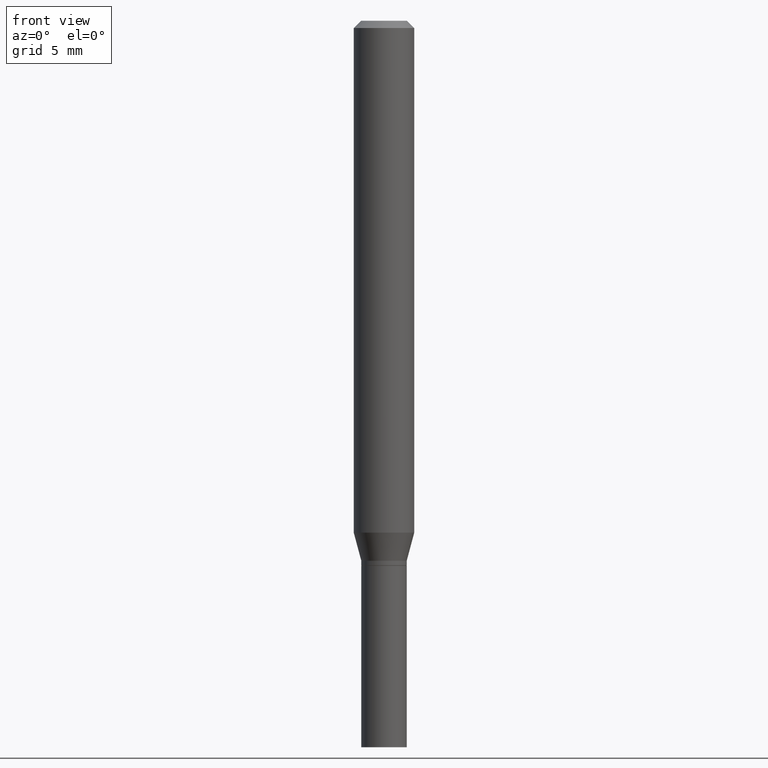
[diagram: clean part render]
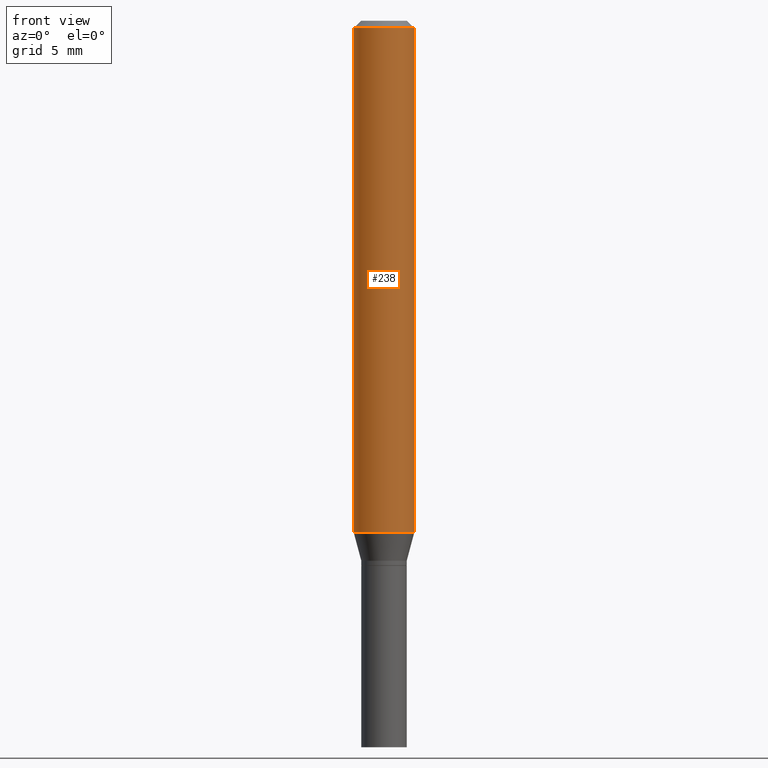
[diagram: same view with one face highlighted and labeled with its STEP entity id]
A machine part, front view. The second image highlights one B-rep face of the part: STEP entity #238.
In plain terms, the highlighted cylindrical surface (edge-blend (fillet) strip) has radius 1.5875 mm, axis along (-0, 0, 1).
Its self-contained STEP definition (entity closure, byte-faithful):
#22 = FACE_OUTER_BOUND ( 'NONE', #161, .T. ) ;
#35 = VERTEX_POINT ( 'NONE', #253 ) ;
#45 = CYLINDRICAL_SURFACE ( 'NONE', #272, 0.06250000000000000000 ) ;
#47 = ORIENTED_EDGE ( 'NONE', *, *, #222, .F. ) ;
#55 = ORIENTED_EDGE ( 'NONE', *, *, #112, .T. ) ;
#56 = VERTEX_POINT ( 'NONE', #454 ) ;
#60 = CARTESIAN_POINT ( 'NONE',  ( 0.06250000000000000000, -4.364351673553916694E-16, 3.047610484872459871E-30 ) ) ;
#84 = DIRECTION ( 'NONE',  ( -2.445468806185136877E-29, 3.491481338843145188E-15, 1.000000000000000000 ) ) ;
#88 = CIRCLE ( 'NONE', #437, 0.06249999999999999306 ) ;
#106 = DIRECTION ( 'NONE',  ( 1.000000000000000000, -6.982962677686266711E-15, 0.000000000000000000 ) ) ;
#112 = EDGE_CURVE ( 'NONE', #35, #425, #88, .T. ) ;
#137 = CARTESIAN_POINT ( 'NONE',  ( 3.668203209277705088E-31, -5.237222008264718399E-17, -0.01499999999999999944 ) ) ;
#145 = ORIENTED_EDGE ( 'NONE', *, *, #307, .T. ) ;
#147 = CARTESIAN_POINT ( 'NONE',  ( 0.000000000000000000, 0.000000000000000000, 0.000000000000000000 ) ) ;
#154 = DIRECTION ( 'NONE',  ( -2.445468806185136597E-29, 3.491481338843145583E-15, 1.000000000000000000 ) ) ;
#160 = CARTESIAN_POINT ( 'NONE',  ( 0.06250000000000000000, -4.888073874380388472E-16, -0.01499999999999999944 ) ) ;
#161 = EDGE_LOOP ( 'NONE', ( #318, #55, #145, #47 ) ) ;
#194 = CIRCLE ( 'NONE', #390, 0.06250000000000000000 ) ;
#211 = LINE ( 'NONE', #279, #362 ) ;
#220 = CARTESIAN_POINT ( 'NONE',  ( 2.584322543101508946E-29, -3.689727675106347649E-15, -1.056780007401926680 ) ) ;
#222 = EDGE_CURVE ( 'NONE', #56, #423, #194, .T. ) ;
#238 = ADVANCED_FACE ( 'NONE', ( #22 ), #45, .T. ) ;
#239 = DIRECTION ( 'NONE',  ( -2.445468806185136877E-29, 3.491481338843145188E-15, 1.000000000000000000 ) ) ;
#250 = DIRECTION ( 'NONE',  ( 1.000000000000000000, -6.982962677686266711E-15, 4.876176775795935793E-29 ) ) ;
#253 = CARTESIAN_POINT ( 'NONE',  ( -0.06249999999999999306, -3.245638465256285822E-15, -1.056780007401926680 ) ) ;
#260 = EDGE_CURVE ( 'NONE', #35, #56, #211, .T. ) ;
#272 = AXIS2_PLACEMENT_3D ( 'NONE', #147, #431, #250 ) ;
#279 = CARTESIAN_POINT ( 'NONE',  ( -0.06250000000000000000, 4.440892098500626162E-16, -3.074334431409316114E-30 ) ) ;
#307 = EDGE_CURVE ( 'NONE', #425, #423, #314, .T. ) ;
#314 = LINE ( 'NONE', #60, #368 ) ;
#318 = ORIENTED_EDGE ( 'NONE', *, *, #260, .F. ) ;
#353 = DIRECTION ( 'NONE',  ( -2.445468806185136597E-29, 3.491481338843145583E-15, 1.000000000000000000 ) ) ;
#362 = VECTOR ( 'NONE', #84, 39.37007874015748143 ) ;
#368 = VECTOR ( 'NONE', #239, 39.37007874015748143 ) ;
#369 = DIRECTION ( 'NONE',  ( 1.000000000000000000, -6.982962677686263555E-15, 0.000000000000000000 ) ) ;
#390 = AXIS2_PLACEMENT_3D ( 'NONE', #137, #353, #106 ) ;
#418 = CARTESIAN_POINT ( 'NONE',  ( 0.06249999999999999306, -4.126162842461740107E-15, -1.056780007401926680 ) ) ;
#423 = VERTEX_POINT ( 'NONE', #160 ) ;
#425 = VERTEX_POINT ( 'NONE', #418 ) ;
#431 = DIRECTION ( 'NONE',  ( -2.445468806185136597E-29, 3.491481338843145583E-15, 1.000000000000000000 ) ) ;
#437 = AXIS2_PLACEMENT_3D ( 'NONE', #220, #154, #369 ) ;
#454 = CARTESIAN_POINT ( 'NONE',  ( -0.06250000000000000000, -1.426960737744434945E-15, -0.01499999999999999944 ) ) ;